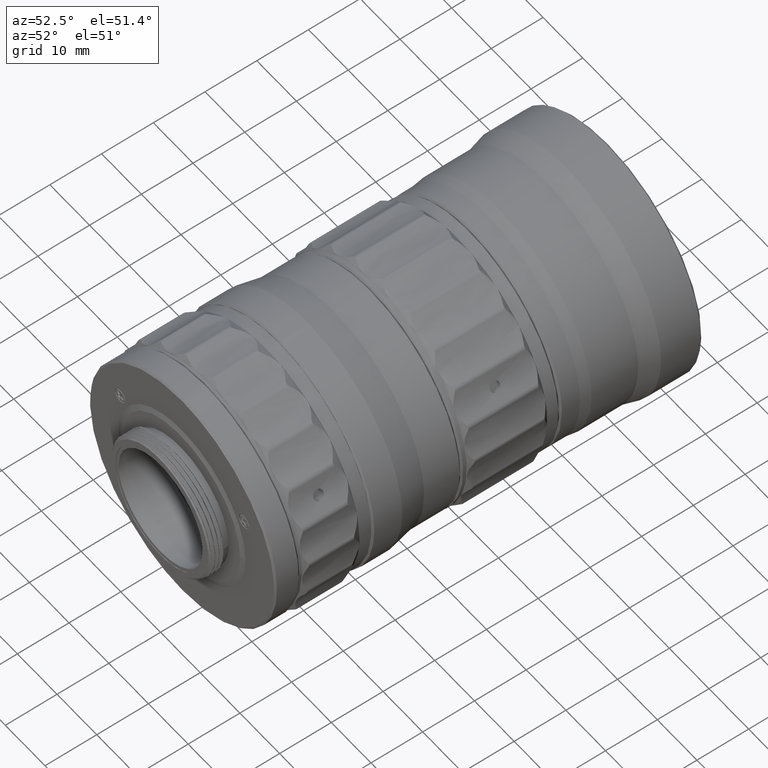
[diagram: clean part render]
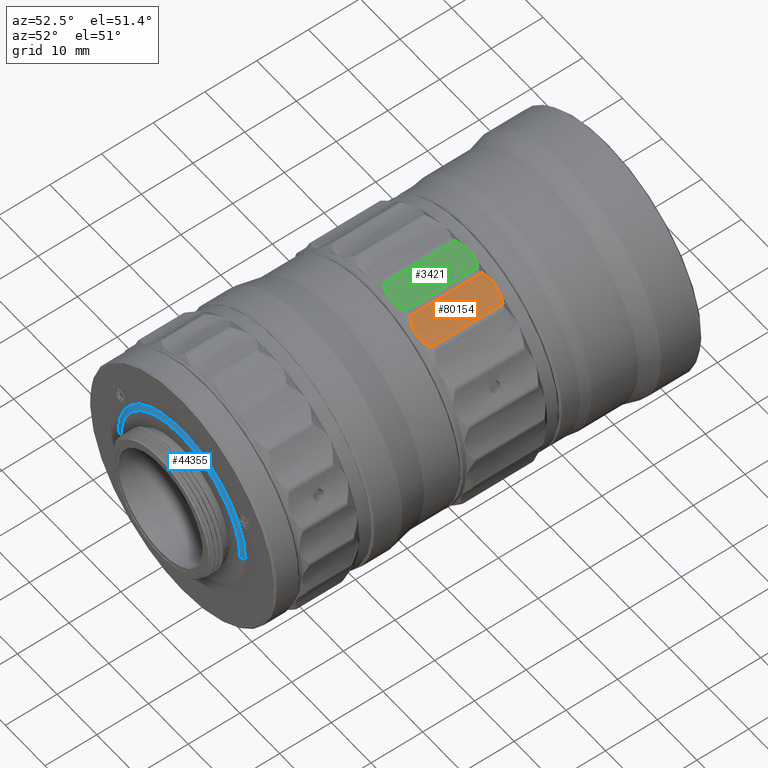
[diagram: same view with three faces highlighted in distinct colors, each labeled with its STEP entity id]
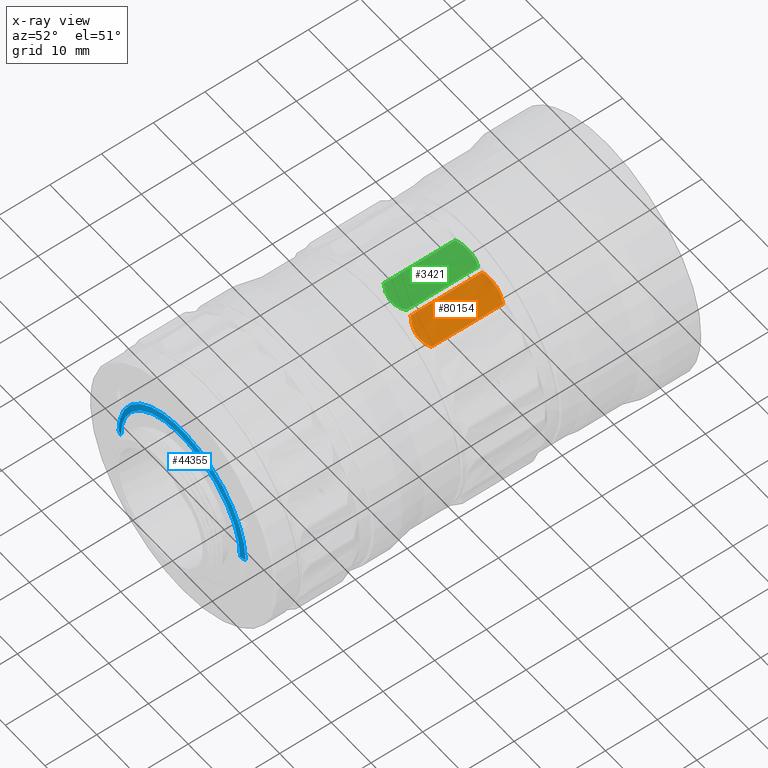
[diagram: x-ray of the same camera — body ghosted, the three highlighted faces saturated]
A machine part, auxiliary view with three faces highlighted in distinct colors.
The next image is the same camera in x-ray (body ghosted, the three faces saturated) — at least one of them is partly hidden behind the body in this view.
Their STEP definitions:

[orange] entity #80154 — the highlighted face is a freeform B-spline surface patch.
#1004 = CARTESIAN_POINT ( 'NONE',  ( 7.248219642508678007, 41.87847909709653038, 21.96670567153664777 ) ) ;
#1727 = CARTESIAN_POINT ( 'NONE',  ( 8.345346652406382404, 42.19912698475891233, 21.10020251014491777 ) ) ;
#2286 = CARTESIAN_POINT ( 'NONE',  ( 12.24523800398861262, 56.78317190463933173, 19.51054502774535138 ) ) ;
#2693 = CARTESIAN_POINT ( 'NONE',  ( 10.61358104832919302, 57.39365652964669096, 19.93173463766380848 ) ) ;
#3690 = ORIENTED_EDGE ( 'NONE', *, *, #18611, .T. ) ;
#3718 = B_SPLINE_CURVE_WITH_KNOTS ( 'NONE', 3,
 ( #51362, #2286, #39482, #50962, #64432, #27230, #75853, #64826, #8842, #33739, #2693, #52547, #77448, #21492, #38274, #19915, #65221, #78676, #4323, #54603, #66442, #23550, #3910, #35779 ),
 .UNSPECIFIED., .F., .F.,
 ( 4, 2, 1, 1, 1, 2, 2, 2, 2, 1, 1, 1, 2, 2, 4 ),
 ( -1.000000000000000000, -0.8749999999999995559, -0.8124999999999990008, -0.7812499999999992228, -0.7656249999999995559, -0.7578125000000002220, -0.7500000000000007772, -0.5000000000000088818, -0.3750000000000125455, -0.3125000000000147660, -0.2812500000000162093, -0.2656250000000167644, -0.2578125000000175415, -0.2500000000000183187, 0.000000000000000000 ),
 .UNSPECIFIED. ) ;
#3910 = CARTESIAN_POINT ( 'NONE',  ( 7.605176720671389390, 56.91507413070762311, 21.64179423518128331 ) ) ;
#4323 = CARTESIAN_POINT ( 'NONE',  ( 8.420572509498857272, 57.26673931895562930, 21.04940006780091721 ) ) ;
#7083 = CARTESIAN_POINT ( 'NONE',  ( 9.229334952584181906, 41.99003073959571708, 20.55849524343366852 ) ) ;
#7482 = CARTESIAN_POINT ( 'NONE',  ( 9.910532830243388602, 41.97180259586337314, 20.22373973449928641 ) ) ;
#8842 = CARTESIAN_POINT ( 'NONE',  ( 11.12810780071428240, 57.23782000371316769, 19.77706846515441441 ) ) ;
#12110 = ORIENTED_EDGE ( 'NONE', *, *, #25787, .T. ) ;
#13211 = CARTESIAN_POINT ( 'NONE',  ( 11.08457261350922884, 42.18894743110089252, 19.79012765534874774 ) ) ;
#13687 = CARTESIAN_POINT ( 'NONE',  ( 12.48245864956359874, 57.56181569988935109, 19.47462636674449854 ) ) ;
#15021 = CARTESIAN_POINT ( 'NONE',  ( 7.248219646515970283, 56.65281111311239925, 21.96670566849959982 ) ) ;
#16785 = EDGE_LOOP ( 'NONE', ( #79195, #3690, #64719, #12110 ) ) ;
#18611 = EDGE_CURVE ( 'NONE', #77350, #40401, #3718, .T. ) ;
#19355 = CARTESIAN_POINT ( 'NONE',  ( 8.787277140781572626, 42.06430047316264620, 20.81176526328001586 ) ) ;
#19773 = CARTESIAN_POINT ( 'NONE',  ( 12.48245864666621863, 42.78718888397165188, 19.47462636830319838 ) ) ;
#19830 = CARTESIAN_POINT ( 'NONE',  ( 12.48245864956360052, 41.87847909709653038, 19.47462636674449854 ) ) ;
#19915 = CARTESIAN_POINT ( 'NONE',  ( 8.741252262624247038, 57.36124947056426038, 20.84203167629294384 ) ) ;
#20150 = CARTESIAN_POINT ( 'NONE',  ( 8.310622431662460841, 42.21164838398158281, 21.12399311497549448 ) ) ;
#20547 = CARTESIAN_POINT ( 'NONE',  ( 12.00741152385258914, 42.52613436684973891, 19.54655542092307741 ) ) ;
#21492 = CARTESIAN_POINT ( 'NONE',  ( 9.234964632469390367, 57.45053035421040732, 20.55549313484159413 ) ) ;
#23100 = EDGE_CURVE ( 'NONE', #64436, #77350, #43701, .T. ) ;
#23550 = CARTESIAN_POINT ( 'NONE',  ( 7.980248580171676487, 57.11370879706912973, 21.34771366341526644 ) ) ;
#25647 =( BOUNDED_SURFACE ( )  B_SPLINE_SURFACE ( 1, 3, ( 
 ( #19830, #32469, #39796, #1004 ),
 ( #13687, #33257, #44741, #50875 ) ),
 .UNSPECIFIED., .F., .F., .T. ) 
 B_SPLINE_SURFACE_WITH_KNOTS ( ( 2, 2 ),
 ( 4, 4 ),
 ( 0.0004865198980000002421, 0.9978547881020000121 ),
 ( 0.000000000000000000, 1.000000000000000000 ),
 .UNSPECIFIED. ) 
 GEOMETRIC_REPRESENTATION_ITEM ( )  RATIONAL_B_SPLINE_SURFACE ( (
 ( 1.000000000000000000, 0.9713792066024504734, 0.9713792066024504734, 1.000000000000000000),
 ( 1.000000000000000000, 0.9713792066024504734, 0.9713792066024504734, 1.000000000000000000) ) ) 
 REPRESENTATION_ITEM ( '' )  SURFACE ( )  );
#25787 = EDGE_CURVE ( 'NONE', #60945, #64436, #31772, .T. ) ;
#26277 = CARTESIAN_POINT ( 'NONE',  ( 9.456083085057986892, 41.97153224599660604, 20.43995278491295053 ) ) ;
#26292 = EDGE_CURVE ( 'NONE', #40401, #60945, #61892, .T. ) ;
#26670 = CARTESIAN_POINT ( 'NONE',  ( 8.570463507135254844, 42.12007081157981503, 20.94720857306480255 ) ) ;
#27068 = CARTESIAN_POINT ( 'NONE',  ( 11.03766563410381352, 42.17509983002885576, 19.80443806184021582 ) ) ;
#27214 = CARTESIAN_POINT ( 'NONE',  ( 12.48245864857721976, 56.65281111293489857, 19.47462636655810186 ) ) ;
#27230 = CARTESIAN_POINT ( 'NONE',  ( 11.29611973527560664, 57.18383675322755977, 19.72838203476838359 ) ) ;
#28020 = CARTESIAN_POINT ( 'NONE',  ( 12.48245864666621863, 42.78718888397165188, 19.47462636830319838 ) ) ;
#31772 = B_SPLINE_CURVE_WITH_KNOTS ( 'NONE', 3,
 ( #75689, #57334, #33575, #64263, #63863, #58533, #70758, #20150, #63463, #1727, #26670, #19355, #7083, #26277, #7482, #44264, #33180, #51201, #51987, #51590, #27068, #69172, #13211, #76488, #20547, #45067 ),
 .UNSPECIFIED., .F., .F.,
 ( 4, 2, 1, 1, 1, 2, 2, 2, 2, 2, 1, 1, 1, 2, 2, 4 ),
 ( -1.000000000000000000, -0.8750000000000064393, -0.8125000000000097700, -0.7812500000000117684, -0.7656250000000119904, -0.7578125000000113243, -0.7500000000000107692, -0.6250000000000045519, -0.4999999999999983347, -0.3749999999999921174, -0.3124999999999893419, -0.2812499999999883427, -0.2656249999999871214, -0.2578124999999876765, -0.2499999999999882316, 0.000000000000000000 ),
 .UNSPECIFIED. ) ;
#32469 = CARTESIAN_POINT ( 'NONE',  ( 10.51553608521254191, 41.87847909709653038, 19.77244709239259635 ) ) ;
#33180 = CARTESIAN_POINT ( 'NONE',  ( 10.49659675941247805, 42.04570270154474798, 19.98722261265393740 ) ) ;
#33257 = CARTESIAN_POINT ( 'NONE',  ( 10.51553608521254191, 57.56181569988935820, 19.77244709239259635 ) ) ;
#33575 = CARTESIAN_POINT ( 'NONE',  ( 7.606848196479414348, 42.54263537287365438, 21.65190735578184800 ) ) ;
#33739 = CARTESIAN_POINT ( 'NONE',  ( 11.11544226081647047, 57.24171127230406597, 19.78084339238477440 ) ) ;
#35779 = CARTESIAN_POINT ( 'NONE',  ( 7.248219646515970283, 56.65281111311239925, 21.96670566849959982 ) ) ;
#38192 = FACE_OUTER_BOUND ( 'NONE', #16785, .T. ) ;
#38274 = CARTESIAN_POINT ( 'NONE',  ( 8.904778988455193556, 57.39562694449590907, 20.74433767831416020 ) ) ;
#39482 = CARTESIAN_POINT ( 'NONE',  ( 12.01109698894386746, 56.89781101565312582, 19.55473342726497066 ) ) ;
#39796 = CARTESIAN_POINT ( 'NONE',  ( 8.719382406169424726, 41.87847909709653038, 20.62761580091668989 ) ) ;
#40401 = VERTEX_POINT ( 'NONE', #48951 ) ;
#43701 = B_SPLINE_CURVE_WITH_KNOTS ( 'NONE', 1,
 ( #28020, #27214 ),
 .UNSPECIFIED., .F., .F.,
 ( 2, 2 ),
 ( -1.000000000000000000, 0.000000000000000000 ),
 .UNSPECIFIED. ) ;
#44264 = CARTESIAN_POINT ( 'NONE',  ( 10.14248328708166547, 41.99032831288373302, 20.12390781628387515 ) ) ;
#44741 = CARTESIAN_POINT ( 'NONE',  ( 8.719382406169424726, 57.56181569988935820, 20.62761580091668989 ) ) ;
#45067 = CARTESIAN_POINT ( 'NONE',  ( 12.48245864666621863, 42.78718888397165188, 19.47462636830319838 ) ) ;
#48951 = CARTESIAN_POINT ( 'NONE',  ( 7.248219646515970283, 56.65281111311239925, 21.96670566849959982 ) ) ;
#50875 = CARTESIAN_POINT ( 'NONE',  ( 7.248219642508678007, 57.56181569988935109, 21.96670567153664777 ) ) ;
#50962 = CARTESIAN_POINT ( 'NONE',  ( 11.66529336086139601, 57.04618715667387363, 19.63268289625508700 ) ) ;
#51201 = CARTESIAN_POINT ( 'NONE',  ( 10.67519941205215339, 42.08028634915786625, 19.92214475662600748 ) ) ;
#51206 = CARTESIAN_POINT ( 'NONE',  ( 7.248219642173610922, 42.78718888347025029, 21.96670567147190312 ) ) ;
#51362 = CARTESIAN_POINT ( 'NONE',  ( 12.48245864857721976, 56.65281111293489857, 19.47462636655810186 ) ) ;
#51590 = CARTESIAN_POINT ( 'NONE',  ( 10.99209837563382131, 42.16192812065884254, 19.81850372641121538 ) ) ;
#51987 = CARTESIAN_POINT ( 'NONE',  ( 10.88606691070244281, 42.13270273128443222, 19.85206602388926456 ) ) ;
#52547 = CARTESIAN_POINT ( 'NONE',  ( 10.14253719785851793, 57.46765842406043845, 20.11358992163883386 ) ) ;
#54470 = CARTESIAN_POINT ( 'NONE',  ( 12.48245864857721976, 56.65281111293489857, 19.47462636655810186 ) ) ;
#54603 = CARTESIAN_POINT ( 'NONE',  ( 8.394114335030193885, 57.25783542914127366, 21.06715492676451618 ) ) ;
#57334 = CARTESIAN_POINT ( 'NONE',  ( 7.425304047546762654, 42.65708166737272933, 21.80551892939725889 ) ) ;
#58533 = CARTESIAN_POINT ( 'NONE',  ( 8.191176566684628568, 42.25693304512095239, 21.20712703974012214 ) ) ;
#59574 = CARTESIAN_POINT ( 'NONE',  ( 7.248219642173610922, 42.78718888347025029, 21.96670567147190312 ) ) ;
#60945 = VERTEX_POINT ( 'NONE', #51206 ) ;
#61892 = B_SPLINE_CURVE_WITH_KNOTS ( 'NONE', 1,
 ( #15021, #59574 ),
 .UNSPECIFIED., .F., .F.,
 ( 2, 2 ),
 ( -1.000000000000000000, 0.000000000000000000 ),
 .UNSPECIFIED. ) ;
#63463 = CARTESIAN_POINT ( 'NONE',  ( 8.334587512661027375, 42.20297073961412337, 21.10755285881279164 ) ) ;
#63863 = CARTESIAN_POINT ( 'NONE',  ( 8.025168198360074001, 42.32624112028324959, 21.32641995616784314 ) ) ;
#64263 = CARTESIAN_POINT ( 'NONE',  ( 7.884790283921804033, 42.39445730828650483, 21.43299865120771130 ) ) ;
#64432 = CARTESIAN_POINT ( 'NONE',  ( 11.49374208535610009, 57.11447959580920042, 19.67457370729119859 ) ) ;
#64436 = VERTEX_POINT ( 'NONE', #19773 ) ;
#64719 = ORIENTED_EDGE ( 'NONE', *, *, #26292, .T. ) ;
#64826 = CARTESIAN_POINT ( 'NONE',  ( 11.15602867840861201, 57.22914009490415310, 19.76880641687306550 ) ) ;
#65221 = CARTESIAN_POINT ( 'NONE',  ( 8.553446434598459547, 57.30902232176386235, 20.96165486465136141 ) ) ;
#66442 = CARTESIAN_POINT ( 'NONE',  ( 8.379821376695046453, 57.25293405629251708, 21.07679965276583545 ) ) ;
#69172 = CARTESIAN_POINT ( 'NONE',  ( 11.06807130708492437, 42.18402464571890675, 19.79513184064503406 ) ) ;
#70758 = CARTESIAN_POINT ( 'NONE',  ( 8.274711202600901316, 42.22484837691682458, 21.14874376091880848 ) ) ;
#75689 = CARTESIAN_POINT ( 'NONE',  ( 7.248219642173610922, 42.78718888347025029, 21.96670567147190312 ) ) ;
#75853 = CARTESIAN_POINT ( 'NONE',  ( 11.19795731023197227, 57.21593599321017365, 19.75649881322469881 ) ) ;
#76488 = CARTESIAN_POINT ( 'NONE',  ( 11.54477266975810856, 42.32812639871462324, 19.65167245183622313 ) ) ;
#77350 = VERTEX_POINT ( 'NONE', #54470 ) ;
#77448 = CARTESIAN_POINT ( 'NONE',  ( 9.459264842791894168, 57.46866390982170003, 20.43832508483800225 ) ) ;
#78676 = CARTESIAN_POINT ( 'NONE',  ( 8.460316547651725472, 57.27987872339361530, 21.02286723043859951 ) ) ;
#79195 = ORIENTED_EDGE ( 'NONE', *, *, #23100, .T. ) ;
#80154 = ADVANCED_FACE ( 'NONE', ( #38192 ), #25647, .T. ) ;

[blue] entity #44355 — the highlighted face is a freeform B-spline surface patch.
#569 = ORIENTED_EDGE ( 'NONE', *, *, #80743, .T. ) ;
#1276 = CARTESIAN_POINT ( 'NONE',  ( -16.00000000000000000, 4.185000000000000497, 9.372583003554694869 ) ) ;
#1699 = EDGE_CURVE ( 'NONE', #70312, #59912, #22011, .T. ) ;
#2475 = CARTESIAN_POINT ( 'NONE',  ( 3.281651303531619642E-09, 4.184999999999994280, 16.00000000000000000 ) ) ;
#2880 = CARTESIAN_POINT ( 'NONE',  ( 16.00000000384469701, 4.184999999999988063, 9.372582996991393856 ) ) ;
#5331 = VERTEX_POINT ( 'NONE', #44253 ) ;
#7763 = CARTESIAN_POINT ( 'NONE',  ( 9.372583006836350705, 4.185000000000000497, 15.99999999807765150 ) ) ;
#7870 = ORIENTED_EDGE ( 'NONE', *, *, #1699, .F. ) ;
#12279 = CARTESIAN_POINT ( 'NONE',  ( 3.924759868972592436, 3.884999999999999787, 14.61019422327536432 ) ) ;
#13472 = CARTESIAN_POINT ( 'NONE',  ( -1.965073956256078613, 3.885000000000000675, 14.99999997738235713 ) ) ;
#13500 = CARTESIAN_POINT ( 'NONE',  ( 15.00000000000000000, 3.884999999999999787, -6.153102855459934941E-09 ) ) ;
#14286 = CARTESIAN_POINT ( 'NONE',  ( -16.00000000000000000, 4.185000000000000497, 9.372583003554698422 ) ) ;
#15153 = CARTESIAN_POINT ( 'NONE',  ( 16.00000000289309909, 4.185000000000000497, -6.738708496839890188E-09 ) ) ;
#18008 = CARTESIAN_POINT ( 'NONE',  ( 14.99999997738236246, 3.884999999999998899, 1.965073956255999565 ) ) ;
#19639 = CARTESIAN_POINT ( 'NONE',  ( -14.99999999999999822, 3.885000000000000675, 8.786796565832528216 ) ) ;
#22011 = B_SPLINE_CURVE_WITH_KNOTS ( 'NONE', 3,
 ( #67438, #18008, #80490, #74352, #56001, #49857, #38373, #12279, #37177, #13472, #44122, #50651, #63329, #43318, #49451, #80891, #31469, #56799 ),
 .UNSPECIFIED., .F., .F.,
 ( 4, 2, 2, 2, 2, 2, 2, 2, 4 ),
 ( 0.000000000000000000, 0.3926990816987244171, 0.7853981633974488341, 1.178097245096173307, 1.570796326794897668, 1.963495408493622030, 2.356194490192346613, 2.748893571891070753, 3.141592653589795336 ),
 .UNSPECIFIED. ) ;
#22325 = ORIENTED_EDGE ( 'NONE', *, *, #23343, .T. ) ;
#23160 = CARTESIAN_POINT ( 'NONE',  ( 15.00000000013350032, 3.884999999999999787, -2.515268434573309943E-09 ) ) ;
#23343 = EDGE_CURVE ( 'NONE', #5331, #33329, #75503, .T. ) ;
#25878 = EDGE_CURVE ( 'NONE', #33329, #59912, #55136, .T. ) ;
#27815 = CARTESIAN_POINT ( 'NONE',  ( -16.00000000289309909, 4.185000000000000497, 1.405374722224582122E-09 ) ) ;
#31469 = CARTESIAN_POINT ( 'NONE',  ( -14.99999995330535363, 3.884999999999999787, 1.965073987215279816 ) ) ;
#32671 = CARTESIAN_POINT ( 'NONE',  ( 16.00000000000000000, 4.185000000000000497, -6.563309712490597711E-09 ) ) ;
#33329 = VERTEX_POINT ( 'NONE', #78768 ) ;
#37177 = CARTESIAN_POINT ( 'NONE',  ( 1.965073946735275134, 3.884999999999999787, 15.00000002341877092 ) ) ;
#37943 =( BOUNDED_SURFACE ( )  B_SPLINE_SURFACE ( 1, 3, ( 
 ( #75575, #19639, #44547, #69856, #70254, #69453, #13500 ),
 ( #64154, #14286, #38803, #38397, #7763, #39203, #32671 ) ),
 .UNSPECIFIED., .F., .F., .T. ) 
 B_SPLINE_SURFACE_WITH_KNOTS ( ( 2, 2 ),
 ( 4, 3, 4 ),
 ( 1.222263880321271844E-16, 1.000000000000000000 ),
 ( 0.000000000000000000, 0.5000000000000000000, 1.000000000000000000 ),
 .UNSPECIFIED. ) 
 GEOMETRIC_REPRESENTATION_ITEM ( )  RATIONAL_B_SPLINE_SURFACE ( (
 ( 1.000000000000000000, 0.8047378540760217192, 0.8047378540760217192, 1.000000000000000000, 0.8047378540760217192, 0.8047378540760217192, 1.000000000000000000),
 ( 1.000000000000000000, 0.8047378540760217192, 0.8047378540760217192, 1.000000000000000000, 0.8047378540760217192, 0.8047378540760217192, 1.000000000000000000) ) ) 
 REPRESENTATION_ITEM ( '' )  SURFACE ( )  );
#38373 = CARTESIAN_POINT ( 'NONE',  ( 7.555743090763502146, 3.885000000000000231, 13.10619174532353703 ) ) ;
#38397 = CARTESIAN_POINT ( 'NONE',  ( 3.281654856245298856E-09, 4.185000000000000497, 16.00000000000000000 ) ) ;
#38803 = CARTESIAN_POINT ( 'NONE',  ( -9.372583000273042586, 4.185000000000000497, 16.00000000192235206 ) ) ;
#39203 = CARTESIAN_POINT ( 'NONE',  ( 16.00000000384470056, 4.185000000000000497, 9.372582996991386750 ) ) ;
#41114 = CARTESIAN_POINT ( 'NONE',  ( 16.00000000289309909, 4.185000000000000497, -6.738708496839890188E-09 ) ) ;
#41754 = CARTESIAN_POINT ( 'NONE',  ( -15.00000000013350032, 3.884999999999999787, -2.484731979128545053E-09 ) ) ;
#43318 = CARTESIAN_POINT ( 'NONE',  ( -11.99611883770222143, 3.885000000000001119, 9.217084582120046221 ) ) ;
#44122 = CARTESIAN_POINT ( 'NONE',  ( -3.924759854933793868, 3.884999999999999787, 14.61019419106030348 ) ) ;
#44253 = CARTESIAN_POINT ( 'NONE',  ( 16.00000000289309909, 4.185000000000000497, -6.738708496839890188E-09 ) ) ;
#44355 = ADVANCED_FACE ( 'NONE', ( #63742 ), #37943, .F. ) ;
#44547 = CARTESIAN_POINT ( 'NONE',  ( -8.786796562755975870, 3.885000000000000675, 15.00000000180220638 ) ) ;
#49451 = CARTESIAN_POINT ( 'NONE',  ( -13.10619174532352815, 3.884999999999999787, 7.555743090763521685 ) ) ;
#49857 = CARTESIAN_POINT ( 'NONE',  ( 9.217084582120049774, 3.885000000000001119, 11.99611883770222676 ) ) ;
#50651 = CARTESIAN_POINT ( 'NONE',  ( -7.555743135323531590, 3.884999999999999787, 13.10619176706956424 ) ) ;
#51540 = CARTESIAN_POINT ( 'NONE',  ( -9.372583000273046139, 4.184999999999997833, 16.00000000192235206 ) ) ;
#55136 = B_SPLINE_CURVE_WITH_KNOTS ( 'NONE', 1,
 ( #72372, #41754 ),
 .UNSPECIFIED., .F., .F.,
 ( 2, 2 ),
 ( -1.000000000000000000, 0.000000000000000000 ),
 .UNSPECIFIED. ) ;
#56001 = CARTESIAN_POINT ( 'NONE',  ( 11.99611885234944708, 3.885000000000000231, 9.217084578412871210 ) ) ;
#56799 = CARTESIAN_POINT ( 'NONE',  ( -15.00000000013350032, 3.884999999999999787, -2.484731979128545053E-09 ) ) ;
#59912 = VERTEX_POINT ( 'NONE', #72154 ) ;
#61919 = CARTESIAN_POINT ( 'NONE',  ( 15.00000000013350032, 3.884999999999999787, -2.515268434573309943E-09 ) ) ;
#63329 = CARTESIAN_POINT ( 'NONE',  ( -9.217084578412869433, 3.884999999999999787, 11.99611885234945063 ) ) ;
#63742 = FACE_OUTER_BOUND ( 'NONE', #74488, .T. ) ;
#64154 = CARTESIAN_POINT ( 'NONE',  ( -16.00000000000000000, 4.185000000000000497, 0.000000000000000000 ) ) ;
#67438 = CARTESIAN_POINT ( 'NONE',  ( 15.00000000013350032, 3.884999999999999787, -2.515268434573309943E-09 ) ) ;
#69453 = CARTESIAN_POINT ( 'NONE',  ( 15.00000000360440744, 3.885000000000000675, 8.786796559679427077 ) ) ;
#69856 = CARTESIAN_POINT ( 'NONE',  ( 3.076551427729967470E-09, 3.884999999999999787, 15.00000000000000000 ) ) ;
#70254 = CARTESIAN_POINT ( 'NONE',  ( 8.786796568909078786, 3.885000000000000675, 14.99999999819779894 ) ) ;
#70312 = VERTEX_POINT ( 'NONE', #61919 ) ;
#71095 = CARTESIAN_POINT ( 'NONE',  ( 9.372583006836345376, 4.184999999999990727, 15.99999999807765327 ) ) ;
#72154 = CARTESIAN_POINT ( 'NONE',  ( -15.00000000013350032, 3.884999999999999787, -2.484731979128545053E-09 ) ) ;
#72372 = CARTESIAN_POINT ( 'NONE',  ( -16.00000000289309909, 4.185000000000000497, 1.405374722224582122E-09 ) ) ;
#72451 = B_SPLINE_CURVE_WITH_KNOTS ( 'NONE', 1,
 ( #23160, #41114 ),
 .UNSPECIFIED., .F., .F.,
 ( 2, 2 ),
 ( -1.000000000000000000, 0.000000000000000000 ),
 .UNSPECIFIED. ) ;
#73246 = ORIENTED_EDGE ( 'NONE', *, *, #25878, .T. ) ;
#74352 = CARTESIAN_POINT ( 'NONE',  ( 13.10619176706954114, 3.884999999999999343, 7.555743135323572446 ) ) ;
#74488 = EDGE_LOOP ( 'NONE', ( #569, #22325, #73246, #7870 ) ) ;
#75503 =( BOUNDED_CURVE ( )  B_SPLINE_CURVE ( 3, ( #15153, #2880, #71095, #2475, #51540, #1276, #27815 ),
 .UNSPECIFIED., .F., .T. ) 
 B_SPLINE_CURVE_WITH_KNOTS ( ( 4, 3, 4 ),
 ( -3.141592653589795336, -1.570796326794897668, 0.000000000000000000 ),
 .UNSPECIFIED. ) 
 CURVE ( )  GEOMETRIC_REPRESENTATION_ITEM ( )  RATIONAL_B_SPLINE_CURVE ( ( 1.000000000000000000, 0.8047378540760217192, 0.8047378540760217192, 1.000000000000000000, 0.8047378540760217192, 0.8047378540760217192, 1.000000000000000000 ) ) 
 REPRESENTATION_ITEM ( '' )  );
#75575 = CARTESIAN_POINT ( 'NONE',  ( -15.00000000000000000, 3.884999999999999787, 0.000000000000000000 ) ) ;
#78768 = CARTESIAN_POINT ( 'NONE',  ( -16.00000000289309909, 4.185000000000000497, 1.405374722224582122E-09 ) ) ;
#80490 = CARTESIAN_POINT ( 'NONE',  ( 14.61019419106032302, 3.884999999999999787, 3.924759854933750347 ) ) ;
#80743 = EDGE_CURVE ( 'NONE', #70312, #5331, #72451, .T. ) ;
#80891 = CARTESIAN_POINT ( 'NONE',  ( -14.61019422327535899, 3.885000000000000675, 3.924759868972576005 ) ) ;

[green] entity #3421 — the highlighted face is a freeform B-spline surface patch.
#1152 = CARTESIAN_POINT ( 'NONE',  ( 0.4514014254502930479, 42.78718888280400279, 23.12723681491690186 ) ) ;
#1561 = CARTESIAN_POINT ( 'NONE',  ( 0.8882692205512683348, 56.91507413594919029, 22.92197523161628325 ) ) ;
#1958 = CARTESIAN_POINT ( 'NONE',  ( 5.360202236431147682, 57.04618715667385942, 22.19886345944934547 ) ) ;
#2100 = B_SPLINE_CURVE_WITH_KNOTS ( 'NONE', 3,
 ( #15429, #7706, #27293, #1958, #70982, #34203, #15036, #2758, #52204, #51814, #59172, #14232, #77514, #21558, #21165, #39148, #46478, #71387, #40353, #9315, #32616, #64098, #1561, #26504 ),
 .UNSPECIFIED., .F., .F.,
 ( 4, 2, 1, 1, 1, 2, 2, 2, 2, 1, 1, 1, 2, 2, 4 ),
 ( -1.000000000000000000, -0.8750000000000069944, -0.8125000000000095479, -0.7812500000000113243, -0.7656250000000121014, -0.7578125000000123235, -0.7500000000000125455, -0.5000000000000101030, -0.3750000000000086597, -0.3125000000000077716, -0.2812500000000073275, -0.2656250000000068834, -0.2578125000000071054, -0.2500000000000073275, 0.000000000000000000 ),
 .UNSPECIFIED. ) ;
#2758 = CARTESIAN_POINT ( 'NONE',  ( 4.833439648720474935, 57.22914009490416021, 22.17883099375283962 ) ) ;
#3421 = ADVANCED_FACE ( 'NONE', ( #71023 ), #20268, .T. ) ;
#3606 = CARTESIAN_POINT ( 'NONE',  ( 4.220329230605154081, 41.87847909709653038, 21.99352141886459577 ) ) ;
#6049 = ORIENTED_EDGE ( 'NONE', *, *, #7457, .T. ) ;
#6513 = CARTESIAN_POINT ( 'NONE',  ( 3.011193994497572746, 41.97153224599660604, 22.31909245240052186 ) ) ;
#7457 = EDGE_CURVE ( 'NONE', #8033, #11792, #31288, .T. ) ;
#7496 = EDGE_CURVE ( 'NONE', #45594, #23108, #2100, .T. ) ;
#7706 = CARTESIAN_POINT ( 'NONE',  ( 5.950382331692540383, 56.78317190463929620, 22.25309351774802735 ) ) ;
#7813 = EDGE_CURVE ( 'NONE', #23108, #8033, #46884, .T. ) ;
#8033 = VERTEX_POINT ( 'NONE', #61821 ) ;
#8908 = CARTESIAN_POINT ( 'NONE',  ( 4.741630412557350738, 42.18402464571889965, 22.17806096239701930 ) ) ;
#9315 = CARTESIAN_POINT ( 'NONE',  ( 1.811534469334430630, 57.25783542914125945, 22.60540897626911061 ) ) ;
#10869 = CARTESIAN_POINT ( 'NONE',  ( 0.4514014289697370064, 56.65281111985889595, 23.12723681418630051 ) ) ;
#10889 = ORIENTED_EDGE ( 'NONE', *, *, #66276, .T. ) ;
#11792 = VERTEX_POINT ( 'NONE', #22476 ) ;
#13245 = CARTESIAN_POINT ( 'NONE',  ( 0.4514014254502930479, 42.78718888280400279, 23.12723681491690186 ) ) ;
#14232 = CARTESIAN_POINT ( 'NONE',  ( 3.763348029726409028, 57.46765842406045977, 22.20956487598319029 ) ) ;
#15036 = CARTESIAN_POINT ( 'NONE',  ( 4.877133238338666743, 57.21593599321016654, 22.17942886360453514 ) ) ;
#15429 = CARTESIAN_POINT ( 'NONE',  ( 6.187651144055810626, 56.65281111243120193, 22.28869263368640219 ) ) ;
#18369 = CARTESIAN_POINT ( 'NONE',  ( 0.6681290939982654775, 42.65708166737272933, 23.02540769194562742 ) ) ;
#19182 = CARTESIAN_POINT ( 'NONE',  ( 1.673387343807190009, 42.22484837691684589, 22.64817835883168939 ) ) ;
#20268 =( BOUNDED_SURFACE ( )  B_SPLINE_SURFACE ( 1, 3, ( 
 ( #59628, #3606, #64933, #35489 ),
 ( #21206, #40794, #65734, #22416 ) ),
 .UNSPECIFIED., .F., .F., .T. ) 
 B_SPLINE_SURFACE_WITH_KNOTS ( ( 2, 2 ),
 ( 4, 4 ),
 ( 0.0004865198980000002421, 0.9978547881020000121 ),
 ( 0.000000000000000000, 1.000000000000000000 ),
 .UNSPECIFIED. ) 
 GEOMETRIC_REPRESENTATION_ITEM ( )  RATIONAL_B_SPLINE_SURFACE ( (
 ( 1.000000000000000000, 0.9713792066990706298, 0.9713792066990706298, 1.000000000000000000),
 ( 1.000000000000000000, 0.9713792066990706298, 0.9713792066990706298, 1.000000000000000000) ) ) 
 REPRESENTATION_ITEM ( '' )  SURFACE ( )  );
#20375 = CARTESIAN_POINT ( 'NONE',  ( 4.709832521463463095, 42.17509983002886287, 22.17799150486400706 ) ) ;
#21165 = CARTESIAN_POINT ( 'NONE',  ( 2.394663779497365308, 57.39562694449590907, 22.44745464178076944 ) ) ;
#21206 = CARTESIAN_POINT ( 'NONE',  ( 6.187651140775109582, 57.56181569988935109, 22.28869263475456108 ) ) ;
#21558 = CARTESIAN_POINT ( 'NONE',  ( 2.765843108180826349, 57.45053035421040022, 22.36432385885094831 ) ) ;
#22416 = CARTESIAN_POINT ( 'NONE',  ( 0.4514014258560142268, 57.56181569988935109, 23.12723681455220159 ) ) ;
#22476 = CARTESIAN_POINT ( 'NONE',  ( 6.187651140448680032, 42.78718888279805554, 22.28869263390079780 ) ) ;
#23065 = CARTESIAN_POINT ( 'NONE',  ( 6.187651144055810626, 56.65281111243120193, 22.28869263368640219 ) ) ;
#23108 = VERTEX_POINT ( 'NONE', #10869 ) ;
#24507 = CARTESIAN_POINT ( 'NONE',  ( 3.760255251253388220, 41.99032831288373302, 22.21940848598009666 ) ) ;
#26504 = CARTESIAN_POINT ( 'NONE',  ( 0.4514014289697370064, 56.65281111985889595, 23.12723681418630051 ) ) ;
#27293 = CARTESIAN_POINT ( 'NONE',  ( 5.713618786406379435, 56.89781101565313293, 22.22630447513829210 ) ) ;
#27837 = B_SPLINE_CURVE_WITH_KNOTS ( 'NONE', 1,
 ( #66778, #23065 ),
 .UNSPECIFIED., .F., .F.,
 ( 2, 2 ),
 ( -1.000000000000000000, 0.000000000000000000 ),
 .UNSPECIFIED. ) ;
#30638 = CARTESIAN_POINT ( 'NONE',  ( 2.759578642322320974, 41.99003073959573129, 22.36553321684531070 ) ) ;
#31039 = CARTESIAN_POINT ( 'NONE',  ( 1.217003922704943619, 42.39445730828651193, 22.80487339177861372 ) ) ;
#31288 = B_SPLINE_CURVE_WITH_KNOTS ( 'NONE', 3,
 ( #1152, #18369, #51025, #31039, #75917, #75123, #19182, #80857, #62508, #36753, #61707, #69004, #30638, #6513, #55562, #24507, #38742, #33407, #64494, #64892, #20375, #8908, #52607, #57563, #69793, #63685 ),
 .UNSPECIFIED., .F., .F.,
 ( 4, 2, 1, 1, 1, 2, 2, 2, 2, 2, 1, 1, 1, 2, 2, 4 ),
 ( -1.000000000000000000, -0.8749999999999974465, -0.8124999999999967804, -0.7812499999999968914, -0.7656249999999965583, -0.7578124999999957812, -0.7499999999999950040, -0.6249999999999878986, -0.4999999999999809042, -0.3749999999999739098, -0.3124999999999706901, -0.2812499999999695799, -0.2656249999999685807, -0.2578124999999685807, -0.2499999999999684697, 0.000000000000000000 ),
 .UNSPECIFIED. ) ;
#32140 = ORIENTED_EDGE ( 'NONE', *, *, #7813, .T. ) ;
#32616 = CARTESIAN_POINT ( 'NONE',  ( 1.795033674336427243, 57.25293405629250287, 22.61041229065653724 ) ) ;
#33407 = CARTESIAN_POINT ( 'NONE',  ( 4.328774999305864846, 42.08028634915787336, 22.18363002709165599 ) ) ;
#34203 = CARTESIAN_POINT ( 'NONE',  ( 4.979222146875770250, 57.18383675322757398, 22.18149511746160485 ) ) ;
#35489 = CARTESIAN_POINT ( 'NONE',  ( 0.4514014258560142268, 41.87847909709653038, 23.12723681455220159 ) ) ;
#36753 = CARTESIAN_POINT ( 'NONE',  ( 1.755192442248059370, 42.19912698475891233, 22.62261382435857726 ) ) ;
#38742 = CARTESIAN_POINT ( 'NONE',  ( 4.138925126601578519, 42.04570270154472666, 22.19317260060664054 ) ) ;
#39148 = CARTESIAN_POINT ( 'NONE',  ( 2.209606275831226707, 57.36124947056428169, 22.49260802082289601 ) ) ;
#40353 = CARTESIAN_POINT ( 'NONE',  ( 1.842050517903919271, 57.26673931895561509, 22.59624159972312540 ) ) ;
#40794 = CARTESIAN_POINT ( 'NONE',  ( 4.220329230605154081, 57.56181569988935109, 21.99352141886459577 ) ) ;
#45594 = VERTEX_POINT ( 'NONE', #75012 ) ;
#46478 = CARTESIAN_POINT ( 'NONE',  ( 1.994884580014657516, 57.30902232176387656, 22.55155994682318976 ) ) ;
#46884 = B_SPLINE_CURVE_WITH_KNOTS ( 'NONE', 1,
 ( #76125, #13245 ),
 .UNSPECIFIED., .F., .F.,
 ( 2, 2 ),
 ( -1.000000000000000000, 0.000000000000000000 ),
 .UNSPECIFIED. ) ;
#51025 = CARTESIAN_POINT ( 'NONE',  ( 0.8868855512454830725, 42.54263537287366859, 22.93213172732536265 ) ) ;
#51330 = ORIENTED_EDGE ( 'NONE', *, *, #7496, .T. ) ;
#51814 = CARTESIAN_POINT ( 'NONE',  ( 4.791108411994442484, 57.24171127230405176, 22.17837014360355852 ) ) ;
#52204 = CARTESIAN_POINT ( 'NONE',  ( 4.804323936203752865, 57.23782000371313927, 22.17849615922335360 ) ) ;
#52607 = CARTESIAN_POINT ( 'NONE',  ( 4.758873621746184668, 42.18894743110089252, 22.17814294445998158 ) ) ;
#54224 = EDGE_LOOP ( 'NONE', ( #10889, #51330, #32140, #6049 ) ) ;
#55562 = CARTESIAN_POINT ( 'NONE',  ( 3.509183727952948306, 41.97180259586337314, 22.24643655490201510 ) ) ;
#57563 = CARTESIAN_POINT ( 'NONE',  ( 5.239438668379436059, 42.32812639871463745, 22.18148526484307581 ) ) ;
#59172 = CARTESIAN_POINT ( 'NONE',  ( 4.267067502871080720, 57.39365652964671938, 22.17463152461274589 ) ) ;
#59628 = CARTESIAN_POINT ( 'NONE',  ( 6.187651140775109582, 41.87847909709653038, 22.28869263475456108 ) ) ;
#61707 = CARTESIAN_POINT ( 'NONE',  ( 2.015403741331641463, 42.12007081157980792, 22.54277133632415442 ) ) ;
#61821 = CARTESIAN_POINT ( 'NONE',  ( 0.4514014254502930479, 42.78718888280400279, 23.12723681491690186 ) ) ;
#62508 = CARTESIAN_POINT ( 'NONE',  ( 1.742744747986440634, 42.20297073961410206, 22.62646630542861814 ) ) ;
#63685 = CARTESIAN_POINT ( 'NONE',  ( 6.187651140448680032, 42.78718888279805554, 22.28869263390079780 ) ) ;
#64098 = CARTESIAN_POINT ( 'NONE',  ( 1.333359462919802452, 57.11370879706914394, 22.75151420431613403 ) ) ;
#64494 = CARTESIAN_POINT ( 'NONE',  ( 4.550930315728901832, 42.13270273128442511, 22.17881898209077818 ) ) ;
#64892 = CARTESIAN_POINT ( 'NONE',  ( 4.662143761021477317, 42.16192812065884965, 22.17800108622190791 ) ) ;
#64933 = CARTESIAN_POINT ( 'NONE',  ( 2.251908221467040949, 41.87847909709653038, 22.28127178933943853 ) ) ;
#65734 = CARTESIAN_POINT ( 'NONE',  ( 2.251908221467040949, 57.56181569988935109, 22.28127178933943853 ) ) ;
#66276 = EDGE_CURVE ( 'NONE', #11792, #45594, #27837, .T. ) ;
#66778 = CARTESIAN_POINT ( 'NONE',  ( 6.187651140448680032, 42.78718888279805554, 22.28869263390079780 ) ) ;
#69004 = CARTESIAN_POINT ( 'NONE',  ( 2.262507569943749353, 42.06430047316264620, 22.47725233308375437 ) ) ;
#69793 = CARTESIAN_POINT ( 'NONE',  ( 5.712507565044821156, 42.52613436684976023, 22.21740348464363990 ) ) ;
#70982 = CARTESIAN_POINT ( 'NONE',  ( 5.183924971007662919, 57.11447959580922884, 22.18832755324874739 ) ) ;
#71023 = FACE_OUTER_BOUND ( 'NONE', #54224, .T. ) ;
#71387 = CARTESIAN_POINT ( 'NONE',  ( 1.887849531068259701, 57.27987872339360820, 22.58260230280700398 ) ) ;
#75012 = CARTESIAN_POINT ( 'NONE',  ( 6.187651144055810626, 56.65281111243120193, 22.28869263368640219 ) ) ;
#75123 = CARTESIAN_POINT ( 'NONE',  ( 1.576355145116006495, 42.25693304512095239, 22.67934556581849392 ) ) ;
#75917 = CARTESIAN_POINT ( 'NONE',  ( 1.382559860670703467, 42.32624112028325669, 22.74440680636437051 ) ) ;
#76125 = CARTESIAN_POINT ( 'NONE',  ( 0.4514014289697370064, 56.65281111985889595, 23.12723681418630051 ) ) ;
#77514 = CARTESIAN_POINT ( 'NONE',  ( 3.014714178541491485, 57.46866390982168582, 22.31847490433832348 ) ) ;
#80857 = CARTESIAN_POINT ( 'NONE',  ( 1.714998518110947057, 42.21164838398158281, 22.63511233539605527 ) ) ;